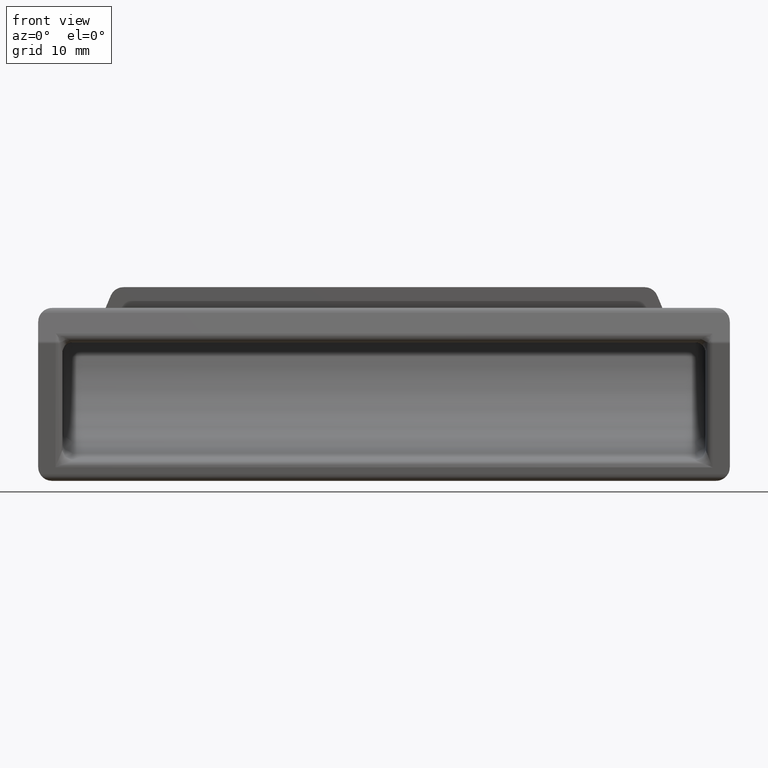
[diagram: clean part render]
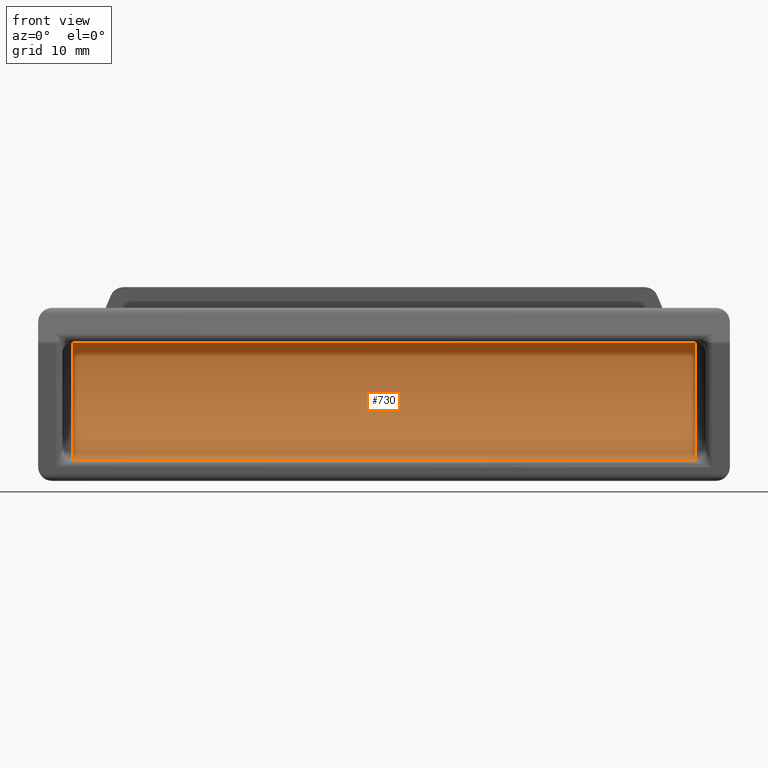
[diagram: same view with one face highlighted and labeled with its STEP entity id]
A machine part, front view. The second image highlights one B-rep face of the part: STEP entity #730.
In plain terms, the highlighted cylindrical surface (partial cylindrical patch) has radius 18.6789 mm, axis along (1, 0, 0).
Its self-contained STEP definition (entity closure, byte-faithful):
#27 = DIRECTION ( 'NONE',  ( 1.000000000000000000, 0.0000000000000000000, 0.0000000000000000000 ) ) ;
#52 = VERTEX_POINT ( 'NONE', #1085 ) ;
#160 = LINE ( 'NONE', #3250, #825 ) ;
#327 = VERTEX_POINT ( 'NONE', #1885 ) ;
#657 = DIRECTION ( 'NONE',  ( -1.000000000000000000, 0.0000000000000000000, 0.0000000000000000000 ) ) ;
#694 = VERTEX_POINT ( 'NONE', #2443 ) ;
#711 = VERTEX_POINT ( 'NONE', #3153 ) ;
#730 = ADVANCED_FACE ( 'NONE', ( #2259 ), #935, .F. ) ;
#774 = ORIENTED_EDGE ( 'NONE', *, *, #1796, .T. ) ;
#788 = EDGE_CURVE ( 'NONE', #327, #711, #1589, .T. ) ;
#807 = DIRECTION ( 'NONE',  ( 0.0000000000000000000, 0.0000000000000000000, 1.000000000000000000 ) ) ;
#814 = EDGE_LOOP ( 'NONE', ( #858, #774, #1412, #2654 ) ) ;
#821 = CARTESIAN_POINT ( 'NONE',  ( -45.00000000000000000, -3.593294092900099800, 9.080023843475249400 ) ) ;
#824 = CIRCLE ( 'NONE', #2432, 18.67890619229195400 ) ;
#825 = VECTOR ( 'NONE', #27, 1000.000000000000000 ) ;
#858 = ORIENTED_EDGE ( 'NONE', *, *, #1191, .F. ) ;
#935 = CYLINDRICAL_SURFACE ( 'NONE', #2054, 18.67890619229195100 ) ;
#945 = DIRECTION ( 'NONE',  ( 0.0000000000000000000, -1.787761369363998500E-015, 1.000000000000000000 ) ) ;
#953 = DIRECTION ( 'NONE',  ( 1.000000000000000000, -0.0000000000000000000, -0.0000000000000000000 ) ) ;
#964 = CARTESIAN_POINT ( 'NONE',  ( 45.00000000000000000, -3.593294092900099800, 9.080023843475249400 ) ) ;
#1065 = EDGE_CURVE ( 'NONE', #711, #52, #1632, .T. ) ;
#1085 = CARTESIAN_POINT ( 'NONE',  ( 45.00000000000000000, 15.03820002636550000, 7.750000000000000000 ) ) ;
#1191 = EDGE_CURVE ( 'NONE', #694, #52, #160, .T. ) ;
#1412 = ORIENTED_EDGE ( 'NONE', *, *, #788, .T. ) ;
#1589 = LINE ( 'NONE', #1869, #2096 ) ;
#1632 = CIRCLE ( 'NONE', #3085, 18.67890619229195400 ) ;
#1796 = EDGE_CURVE ( 'NONE', #694, #327, #824, .T. ) ;
#1869 = CARTESIAN_POINT ( 'NONE',  ( -953.5000000000000000, 1.776356839400249700E-015, -9.250000000000000000 ) ) ;
#1885 = CARTESIAN_POINT ( 'NONE',  ( -45.00000000000000000, 1.776356839400249700E-015, -9.250000000000000000 ) ) ;
#2000 = DIRECTION ( 'NONE',  ( 1.000000000000000000, 0.0000000000000000000, 0.0000000000000000000 ) ) ;
#2054 = AXIS2_PLACEMENT_3D ( 'NONE', #3018, #2456, #2869 ) ;
#2096 = VECTOR ( 'NONE', #2000, 1000.000000000000000 ) ;
#2259 = FACE_OUTER_BOUND ( 'NONE', #814, .T. ) ;
#2432 = AXIS2_PLACEMENT_3D ( 'NONE', #821, #657, #807 ) ;
#2443 = CARTESIAN_POINT ( 'NONE',  ( -45.00000000000000000, 15.03820002636550000, 7.750000000000000000 ) ) ;
#2456 = DIRECTION ( 'NONE',  ( 1.000000000000000000, 0.0000000000000000000, 0.0000000000000000000 ) ) ;
#2654 = ORIENTED_EDGE ( 'NONE', *, *, #1065, .T. ) ;
#2869 = DIRECTION ( 'NONE',  ( 0.0000000000000000000, 0.0000000000000000000, -1.000000000000000000 ) ) ;
#3018 = CARTESIAN_POINT ( 'NONE',  ( -953.5000000000000000, -3.593294092900099800, 9.080023843475249400 ) ) ;
#3085 = AXIS2_PLACEMENT_3D ( 'NONE', #964, #953, #945 ) ;
#3153 = CARTESIAN_POINT ( 'NONE',  ( 45.00000000000000000, 1.776356839400249700E-015, -9.250000000000000000 ) ) ;
#3250 = CARTESIAN_POINT ( 'NONE',  ( -953.5000000000000000, 15.03820002636550000, 7.750000000000000000 ) ) ;